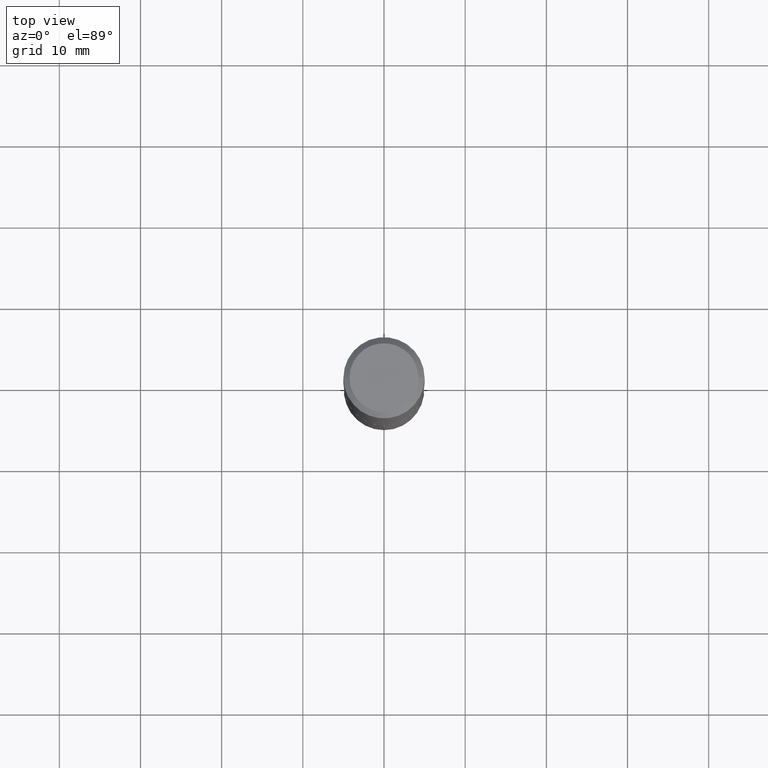
[diagram: clean part render]
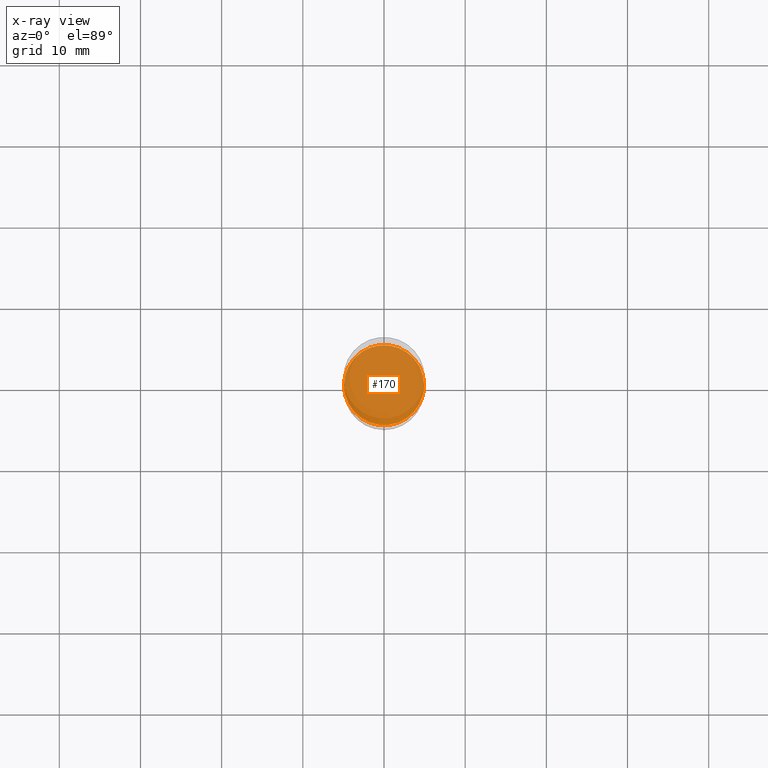
[diagram: x-ray — body ghosted, one internal face saturated and labeled with its STEP entity id]
A machine part, top view, then the same camera in x-ray: the body is ghosted and one INTERNAL B-rep face — a face not visible from any outside direction — is saturated and labeled: STEP entity #170.
In plain terms, the highlighted planar face has unit normal (-0, 0, 1).
Its self-contained STEP definition (entity closure, byte-faithful):
#3 = DIRECTION ( 'NONE',  ( 1.000000000000000000, -6.982962677686267499E-15, 0.000000000000000000 ) ) ;
#66 = DIRECTION ( 'NONE',  ( -2.445468806185136597E-29, 3.491481338843145583E-15, 1.000000000000000000 ) ) ;
#70 = EDGE_CURVE ( 'NONE', #427, #200, #365, .T. ) ;
#77 = CARTESIAN_POINT ( 'NONE',  ( 5.198822135068982087E-29, -7.422540178246643119E-15, -2.125899999999999679 ) ) ;
#84 = DIRECTION ( 'NONE',  ( -2.438088387897960049E-29, 3.491481338843145188E-15, 1.000000000000000000 ) ) ;
#108 = DIRECTION ( 'NONE',  ( 1.000000000000000000, -6.982962677686267499E-15, 0.000000000000000000 ) ) ;
#117 = CARTESIAN_POINT ( 'NONE',  ( 0.1943999999999999895, -8.780028122788853203E-15, -2.125899999999999679 ) ) ;
#119 = DIRECTION ( 'NONE',  ( 1.000000000000000000, -6.982962677686265922E-15, 4.876176775795935793E-29 ) ) ;
#120 = PLANE ( 'NONE',  #218 ) ;
#121 = CARTESIAN_POINT ( 'NONE',  ( 5.198822135068982087E-29, -7.422540178246643119E-15, -2.125899999999999679 ) ) ;
#143 = AXIS2_PLACEMENT_3D ( 'NONE', #121, #187, #3 ) ;
#149 = AXIS2_PLACEMENT_3D ( 'NONE', #77, #66, #108 ) ;
#170 = ADVANCED_FACE ( 'NONE', ( #223 ), #120, .F. ) ;
#187 = DIRECTION ( 'NONE',  ( -2.445468806185136597E-29, 3.491481338843145583E-15, 1.000000000000000000 ) ) ;
#200 = VERTEX_POINT ( 'NONE', #117 ) ;
#207 = CARTESIAN_POINT ( 'NONE',  ( -0.1943999999999999895, -6.038595872754897034E-15, -2.125899999999999679 ) ) ;
#218 = AXIS2_PLACEMENT_3D ( 'NONE', #492, #84, #119 ) ;
#223 = FACE_OUTER_BOUND ( 'NONE', #452, .T. ) ;
#239 = ORIENTED_EDGE ( 'NONE', *, *, #70, .F. ) ;
#293 = EDGE_CURVE ( 'NONE', #200, #427, #397, .T. ) ;
#365 = CIRCLE ( 'NONE', #149, 0.1943999999999999895 ) ;
#397 = CIRCLE ( 'NONE', #143, 0.1943999999999999895 ) ;
#427 = VERTEX_POINT ( 'NONE', #207 ) ;
#452 = EDGE_LOOP ( 'NONE', ( #469, #239 ) ) ;
#469 = ORIENTED_EDGE ( 'NONE', *, *, #293, .F. ) ;
#492 = CARTESIAN_POINT ( 'NONE',  ( 5.198822135068982087E-29, -7.422540178246643119E-15, -2.125899999999999679 ) ) ;